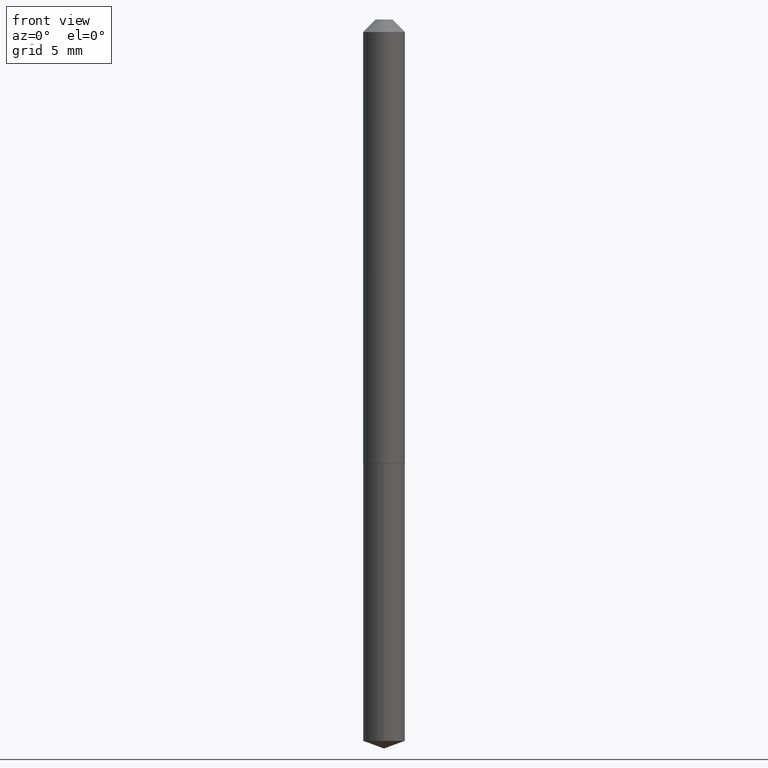
[diagram: clean part render]
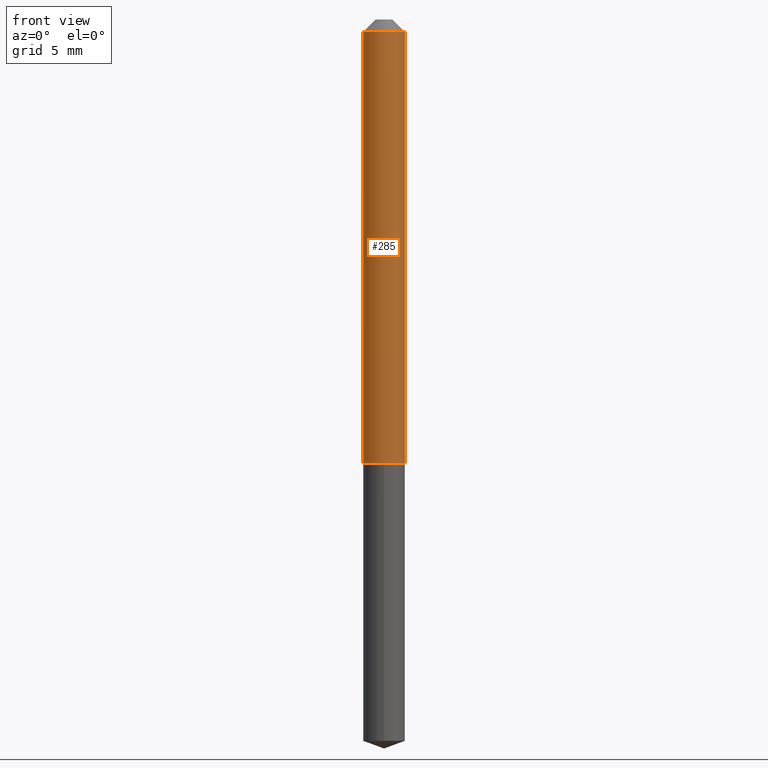
[diagram: same view with one face highlighted and labeled with its STEP entity id]
A machine part, front view. The second image highlights one B-rep face of the part: STEP entity #285.
In plain terms, the highlighted cylindrical surface (edge-blend (fillet) strip) has radius 1.3208 mm, axis along (-0, 0, 1).
Its self-contained STEP definition (entity closure, byte-faithful):
#2 = DIRECTION ( 'NONE',  ( 1.000000000000000000, -6.982962677686266711E-15, 4.876176775795935793E-29 ) ) ;
#3 = CYLINDRICAL_SURFACE ( 'NONE', #184, 0.05200000000000006700 ) ;
#6 = DIRECTION ( 'NONE',  ( -2.445468806185136597E-29, 3.491481338843145583E-15, 1.000000000000000000 ) ) ;
#10 = CIRCLE ( 'NONE', #388, 0.05200000000000000455 ) ;
#16 = VERTEX_POINT ( 'NONE', #49 ) ;
#32 = CARTESIAN_POINT ( 'NONE',  ( -0.05200000000000012945, -3.483367434818158202E-15, -1.103500000000000147 ) ) ;
#49 = CARTESIAN_POINT ( 'NONE',  ( 0.05200000000000012945, -4.215963716653098357E-15, -1.103500000000000147 ) ) ;
#68 = DIRECTION ( 'NONE',  ( -2.445468806185136877E-29, 3.491481338843145188E-15, 1.000000000000000000 ) ) ;
#116 = CARTESIAN_POINT ( 'NONE',  ( 2.698574827625298297E-29, -3.852849657413411415E-15, -1.103500000000000147 ) ) ;
#118 = EDGE_LOOP ( 'NONE', ( #372, #162, #329, #171 ) ) ;
#133 = EDGE_CURVE ( 'NONE', #280, #16, #340, .T. ) ;
#154 = DIRECTION ( 'NONE',  ( 1.000000000000000000, -6.982962677686266711E-15, 0.000000000000000000 ) ) ;
#162 = ORIENTED_EDGE ( 'NONE', *, *, #133, .T. ) ;
#171 = ORIENTED_EDGE ( 'NONE', *, *, #216, .F. ) ;
#180 = VERTEX_POINT ( 'NONE', #261 ) ;
#184 = AXIS2_PLACEMENT_3D ( 'NONE', #190, #6, #2 ) ;
#190 = CARTESIAN_POINT ( 'NONE',  ( 0.000000000000000000, 0.000000000000000000, 0.000000000000000000 ) ) ;
#200 = VECTOR ( 'NONE', #300, 39.37007874015748143 ) ;
#209 = DIRECTION ( 'NONE',  ( -2.445468806185136597E-29, 3.491481338843145583E-15, 1.000000000000000000 ) ) ;
#216 = EDGE_CURVE ( 'NONE', #180, #308, #10, .T. ) ;
#225 = CARTESIAN_POINT ( 'NONE',  ( 0.05200000000000000455, -4.722228510785349578E-16, -0.03125000000000021511 ) ) ;
#245 = DIRECTION ( 'NONE',  ( -2.445468806185136597E-29, 3.491481338843145583E-15, 1.000000000000000000 ) ) ;
#261 = CARTESIAN_POINT ( 'NONE',  ( -0.05200000000000000455, -1.611497002030876847E-15, -0.03125000000000021511 ) ) ;
#280 = VERTEX_POINT ( 'NONE', #32 ) ;
#285 = ADVANCED_FACE ( 'NONE', ( #307 ), #3, .T. ) ;
#292 = DIRECTION ( 'NONE',  ( 1.000000000000000000, -6.982962677686269077E-15, 0.000000000000000000 ) ) ;
#300 = DIRECTION ( 'NONE',  ( -2.445468806185136877E-29, 3.491481338843145188E-15, 1.000000000000000000 ) ) ;
#307 = FACE_OUTER_BOUND ( 'NONE', #118, .T. ) ;
#308 = VERTEX_POINT ( 'NONE', #225 ) ;
#316 = EDGE_CURVE ( 'NONE', #280, #180, #328, .T. ) ;
#327 = LINE ( 'NONE', #390, #200 ) ;
#328 = LINE ( 'NONE', #363, #377 ) ;
#329 = ORIENTED_EDGE ( 'NONE', *, *, #374, .T. ) ;
#340 = CIRCLE ( 'NONE', #370, 0.05200000000000012945 ) ;
#359 = CARTESIAN_POINT ( 'NONE',  ( 7.642090019328603538E-31, -1.091087918388490390E-16, -0.03125000000000021511 ) ) ;
#363 = CARTESIAN_POINT ( 'NONE',  ( -0.05200000000000006700, 3.694822225952525727E-16, -2.557846246932554274E-30 ) ) ;
#370 = AXIS2_PLACEMENT_3D ( 'NONE', #116, #209, #292 ) ;
#372 = ORIENTED_EDGE ( 'NONE', *, *, #316, .F. ) ;
#374 = EDGE_CURVE ( 'NONE', #16, #308, #327, .T. ) ;
#377 = VECTOR ( 'NONE', #68, 39.37007874015748143 ) ;
#388 = AXIS2_PLACEMENT_3D ( 'NONE', #359, #245, #154 ) ;
#390 = CARTESIAN_POINT ( 'NONE',  ( 0.05200000000000006700, -3.631140592396863502E-16, 2.535611923413889961E-30 ) ) ;